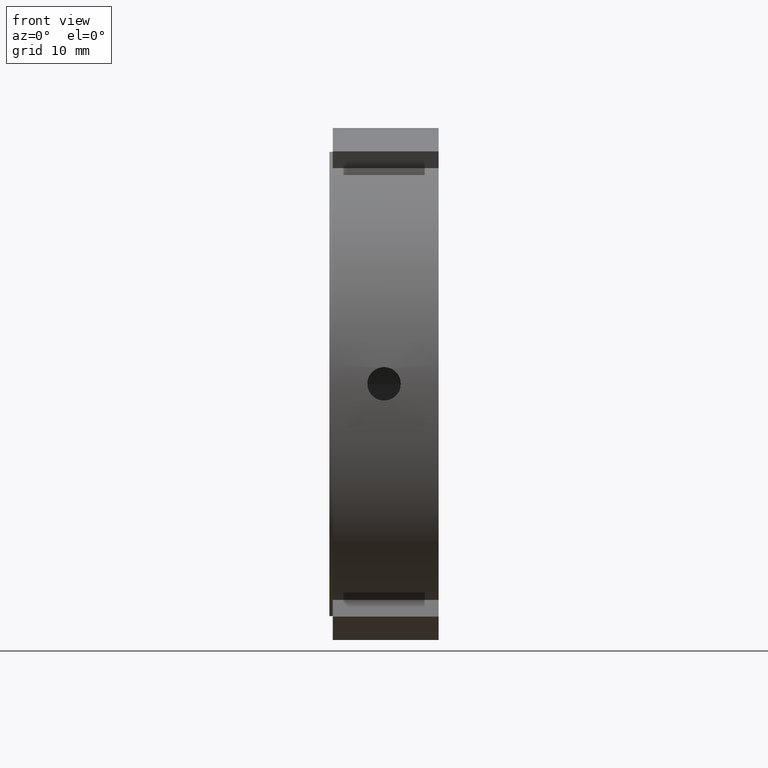
[diagram: clean part render]
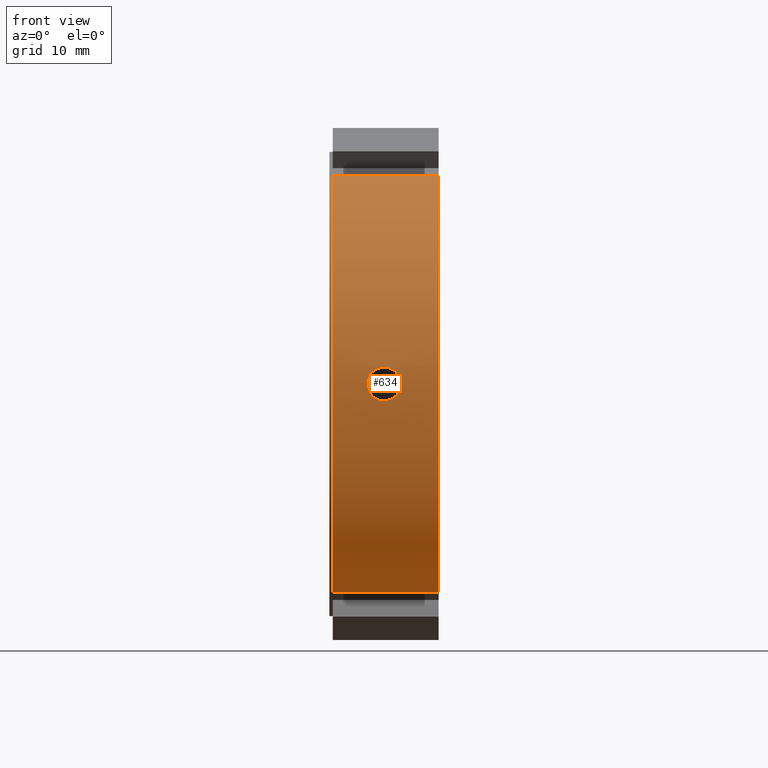
[diagram: same view with one face highlighted and labeled with its STEP entity id]
A machine part, front view. The second image highlights one B-rep face of the part: STEP entity #634.
In plain terms, the highlighted cylindrical surface (partial cylindrical patch) has radius 37.5 mm, axis along (1, 0, 0).
Its self-contained STEP definition (entity closure, byte-faithful):
#75=CARTESIAN_POINT('',(0.499999999999989,-21.699243615840018,-30.584192428449470));
#76=VERTEX_POINT('',#75);
#91=CARTESIAN_POINT('',(15.999999999999995,-21.699243615840022,-30.584192428449477));
#92=VERTEX_POINT('',#91);
#99=CARTESIAN_POINT('',(0.499999999999989,-21.699243615840018,-30.584192428449480));
#100=DIRECTION('',(1.0,0.0,0.0));
#101=VECTOR('',#100,15.500000000000005);
#102=LINE('',#99,#101);
#103=EDGE_CURVE('',#76,#92,#102,.T.);
#303=CARTESIAN_POINT('',(0.499999999999989,-21.699243615839997,30.584192428449487));
#304=VERTEX_POINT('',#303);
#313=CARTESIAN_POINT('',(15.999999999999995,-21.699243615839997,30.584192428449491));
#314=VERTEX_POINT('',#313);
#315=CARTESIAN_POINT('',(15.999999999999995,-21.699243615839997,30.584192428449491));
#316=DIRECTION('',(-1.0,0.0,0.0));
#317=VECTOR('',#316,15.500000000000005);
#318=LINE('',#315,#317);
#319=EDGE_CURVE('',#314,#304,#318,.T.);
#499=CARTESIAN_POINT('',(15.999999999999993,0.0,0.0));
#500=DIRECTION('',(1.0,0.0,0.0));
#501=DIRECTION('',(0.0,1.0,0.0));
#502=AXIS2_PLACEMENT_3D('',#499,#500,#501);
#503=CIRCLE('',#502,37.500000000000000);
#504=EDGE_CURVE('',#314,#92,#503,.T.);
#576=CARTESIAN_POINT('',(8.249999999999991,0.0,0.0));
#577=DIRECTION('',(1.0,0.0,0.0));
#578=DIRECTION('',(0.0,1.0,0.0));
#579=AXIS2_PLACEMENT_3D('',#576,#577,#578);
#580=CYLINDRICAL_SURFACE('',#579,37.500000000000000);
#581=ORIENTED_EDGE('',*,*,#103,.T.);
#582=ORIENTED_EDGE('',*,*,#504,.F.);
#583=ORIENTED_EDGE('',*,*,#319,.T.);
#584=CARTESIAN_POINT('',(0.499999999999989,0.0,0.0));
#585=DIRECTION('',(1.0,0.0,0.0));
#586=DIRECTION('',(0.0,1.0,0.0));
#587=AXIS2_PLACEMENT_3D('',#584,#585,#586);
#588=CIRCLE('',#587,37.499999999999993);
#589=EDGE_CURVE('',#304,#76,#588,.T.);
#590=ORIENTED_EDGE('',*,*,#589,.T.);
#591=EDGE_LOOP('',(#581,#582,#583,#590));
#592=FACE_OUTER_BOUND('',#591,.T.);
#593=CARTESIAN_POINT('',(7.999999999999991,-37.419323587552995,2.458500000000000));
#594=VERTEX_POINT('',#593);
#595=CARTESIAN_POINT('',(7.999999999999991,-37.419323587552995,2.458500000000000));
#596=CARTESIAN_POINT('',(8.308789855491268,-37.419323587552995,2.458500000000000));
#597=CARTESIAN_POINT('',(8.638101463612040,-37.423539275394091,2.396770138742590));
#598=CARTESIAN_POINT('',(9.243798818486695,-37.438765389048100,2.145843682422119));
#599=CARTESIAN_POINT('',(9.520192088796131,-37.449555938636273,1.956651954298114));
#600=CARTESIAN_POINT('',(9.956651817806305,-37.469811080518916,1.520192225287940));
#601=CARTESIAN_POINT('',(10.145843650462453,-37.480591503815425,1.243798893935173));
#602=CARTESIAN_POINT('',(10.396770190486532,-37.495794455418306,0.638101340407381));
#603=CARTESIAN_POINT('',(10.458499999999994,-37.500000000000000,0.308789662358819));
#604=CARTESIAN_POINT('',(10.458499999999994,-37.500000000000000,-0.308789662358818));
#605=CARTESIAN_POINT('',(10.396770190486532,-37.495794455418306,-0.638101340407380));
#606=CARTESIAN_POINT('',(10.145843650462453,-37.480591503815425,-1.243798893935172));
#607=CARTESIAN_POINT('',(9.956651817806307,-37.469811080518923,-1.520192225287939));
#608=CARTESIAN_POINT('',(9.520192088796133,-37.449555938636273,-1.956651954298114));
#609=CARTESIAN_POINT('',(9.243798818486695,-37.438765389048100,-2.145843682422119));
#610=CARTESIAN_POINT('',(8.638101463612038,-37.423539275394091,-2.396770138742590));
#611=CARTESIAN_POINT('',(8.308789855491268,-37.419323587552995,-2.458500000000000));
#612=CARTESIAN_POINT('',(7.691210144508716,-37.419323587552995,-2.458500000000000));
#613=CARTESIAN_POINT('',(7.361898536387943,-37.423539275394091,-2.396770138742590));
#614=CARTESIAN_POINT('',(6.756201181513287,-37.438765389048100,-2.145843682422118));
#615=CARTESIAN_POINT('',(6.479807911203852,-37.449555938636273,-1.956651954298114));
#616=CARTESIAN_POINT('',(6.043348182193677,-37.469811080518916,-1.520192225287940));
#617=CARTESIAN_POINT('',(5.854156349537530,-37.480591503815425,-1.243798893935173));
#618=CARTESIAN_POINT('',(5.603229809513453,-37.495794455418306,-0.638101340407381));
#619=CARTESIAN_POINT('',(5.541499999999991,-37.500000000000000,-0.308789662358819));
#620=CARTESIAN_POINT('',(5.541499999999991,-37.500000000000000,0.308789662358818));
#621=CARTESIAN_POINT('',(5.603229809513453,-37.495794455418306,0.638101340407381));
#622=CARTESIAN_POINT('',(5.854156349537529,-37.480591503815425,1.243798893935173));
#623=CARTESIAN_POINT('',(6.043348182193675,-37.469811080518916,1.520192225287939));
#624=CARTESIAN_POINT('',(6.479807911203849,-37.449555938636280,1.956651954298113));
#625=CARTESIAN_POINT('',(6.756201181513285,-37.438765389048100,2.145843682422118));
#626=CARTESIAN_POINT('',(7.361898536387942,-37.423539275394091,2.396770138742590));
#627=CARTESIAN_POINT('',(7.691210144508716,-37.419323587552995,2.458500000000000));
#628=CARTESIAN_POINT('',(7.999999999999991,-37.419323587552995,2.458500000000000));
#629=B_SPLINE_CURVE_WITH_KNOTS('',3,(#595,#596,#597,#598,#599,#600,#601,#602,#603,#604,#605,#606,#607,#608,#609,#610,#611,#612,#613,#614,#615,#616,#617,#618,#619,#620,#621,#622,#623,#624,#625,#626,#627,#628),.UNSPECIFIED.,.T.,.U.,(4,2,2,2,2,2,2,2,2,2,2,2,2,2,2,2,4),(0.0,0.092636956647383,0.185273913294765,0.277910812002411,0.370547710710057,0.463184609417702,0.555821508125348,0.648458464772731,0.741095421420113,0.833732378067496,0.926369334714879,1.019006233422525,1.111643132130170,1.204280030837816,1.296916929545461,1.389553886192844,1.482190842840227),.UNSPECIFIED.);
#630=EDGE_CURVE('',#594,#594,#629,.T.);
#631=ORIENTED_EDGE('',*,*,#630,.T.);
#632=EDGE_LOOP('',(#631));
#633=FACE_BOUND('',#632,.T.);
#634=ADVANCED_FACE('',(#592,#633),#580,.T.);